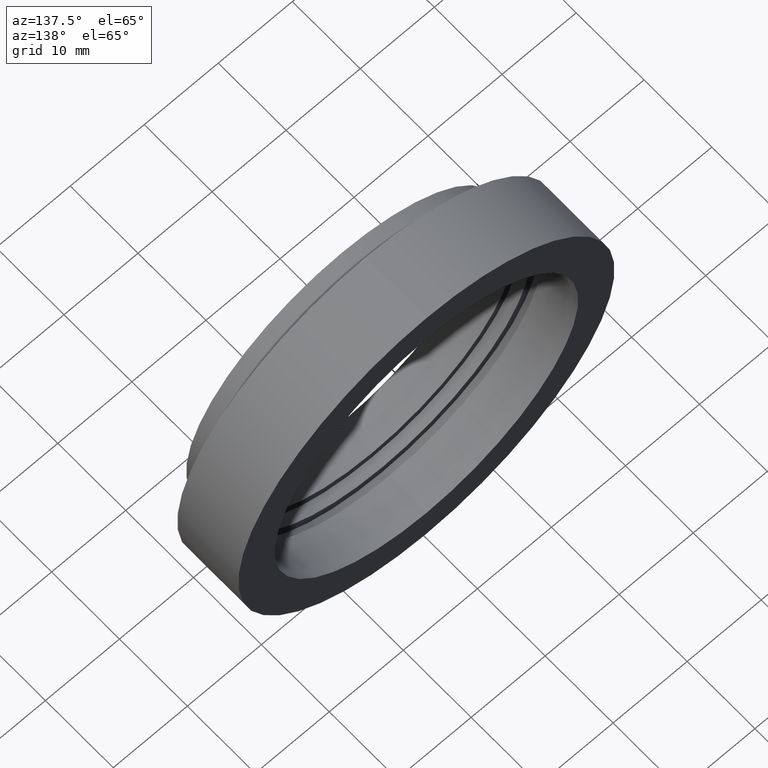
[diagram: clean part render]
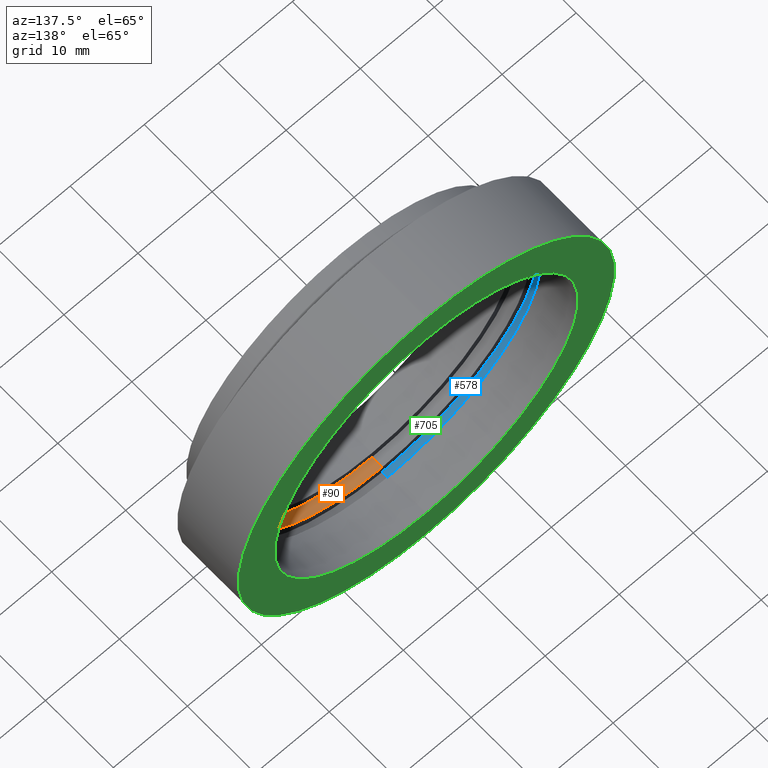
[diagram: same view with three faces highlighted in distinct colors, each labeled with its STEP entity id]
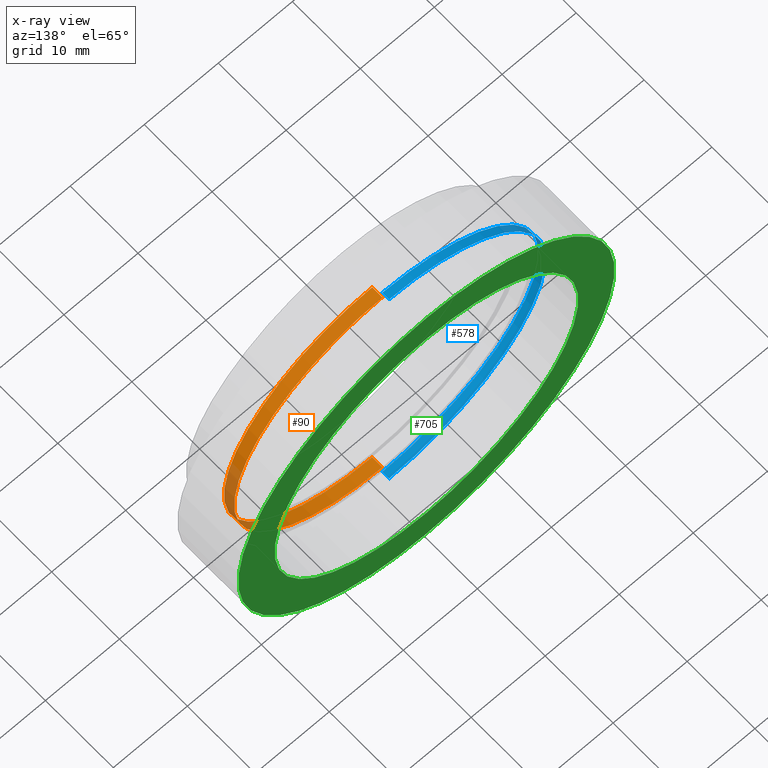
[diagram: x-ray of the same camera — body ghosted, the three highlighted faces saturated]
A machine part, auxiliary view with three faces highlighted in distinct colors.
The next image is the same camera in x-ray (body ghosted, the three faces saturated) — at least one of them is partly hidden behind the body in this view.
Their STEP definitions:

[orange] entity #90 — the highlighted cylindrical surface (partial cylindrical patch) has radius 20 mm, axis along (-0, -1, -0).
#2 = CARTESIAN_POINT ( 'NONE',  ( 0.0000000000000000000, 0.0000000000000000000, -20.00000000000000000 ) ) ;
#4 = VERTEX_POINT ( 'NONE', #415 ) ;
#5 = DIRECTION ( 'NONE',  ( -0.0000000000000000000, -1.000000000000000000, -0.0000000000000000000 ) ) ;
#9 = CARTESIAN_POINT ( 'NONE',  ( 0.0000000000000000000, 4.500000000000000000, 0.0000000000000000000 ) ) ;
#64 = CARTESIAN_POINT ( 'NONE',  ( 0.0000000000000000000, 4.500000000000000000, -20.00000000000000000 ) ) ;
#89 = ORIENTED_EDGE ( 'NONE', *, *, #397, .F. ) ;
#90 = ADVANCED_FACE ( 'NONE', ( #641 ), #625, .F. ) ;
#96 = AXIS2_PLACEMENT_3D ( 'NONE', #145, #323, #141 ) ;
#112 = DIRECTION ( 'NONE',  ( 0.0000000000000000000, 0.0000000000000000000, -1.000000000000000000 ) ) ;
#117 = ORIENTED_EDGE ( 'NONE', *, *, #247, .T. ) ;
#118 = DIRECTION ( 'NONE',  ( -0.0000000000000000000, -1.000000000000000000, -0.0000000000000000000 ) ) ;
#133 = DIRECTION ( 'NONE',  ( -0.0000000000000000000, -1.000000000000000000, -0.0000000000000000000 ) ) ;
#141 = DIRECTION ( 'NONE',  ( 0.0000000000000000000, 0.0000000000000000000, -1.000000000000000000 ) ) ;
#145 = CARTESIAN_POINT ( 'NONE',  ( 0.0000000000000000000, 0.0000000000000000000, 0.0000000000000000000 ) ) ;
#170 = CIRCLE ( 'NONE', #457, 20.00000000000000000 ) ;
#188 = CARTESIAN_POINT ( 'NONE',  ( 0.0000000000000000000, 6.000000000000000000, -20.00000000000000000 ) ) ;
#191 = VECTOR ( 'NONE', #133, 1000.000000000000000 ) ;
#195 = LINE ( 'NONE', #420, #191 ) ;
#218 = ORIENTED_EDGE ( 'NONE', *, *, #488, .T. ) ;
#219 = DIRECTION ( 'NONE',  ( -0.0000000000000000000, -1.000000000000000000, -0.0000000000000000000 ) ) ;
#247 = EDGE_CURVE ( 'NONE', #699, #611, #440, .T. ) ;
#294 = CARTESIAN_POINT ( 'NONE',  ( 2.449293598294706500E-015, 6.000000000000000000, 20.00000000000000000 ) ) ;
#296 = CIRCLE ( 'NONE', #511, 20.00000000000000000 ) ;
#323 = DIRECTION ( 'NONE',  ( -0.0000000000000000000, -1.000000000000000000, -0.0000000000000000000 ) ) ;
#345 = DIRECTION ( 'NONE',  ( 0.0000000000000000000, 0.0000000000000000000, -1.000000000000000000 ) ) ;
#397 = EDGE_CURVE ( 'NONE', #699, #468, #170, .T. ) ;
#402 = CARTESIAN_POINT ( 'NONE',  ( 0.0000000000000000000, 6.000000000000000000, 0.0000000000000000000 ) ) ;
#415 = CARTESIAN_POINT ( 'NONE',  ( 2.449293598294706500E-015, 4.500000000000000000, 20.00000000000000000 ) ) ;
#420 = CARTESIAN_POINT ( 'NONE',  ( 2.449293598294706500E-015, 0.0000000000000000000, 20.00000000000000000 ) ) ;
#440 = LINE ( 'NONE', #2, #716 ) ;
#457 = AXIS2_PLACEMENT_3D ( 'NONE', #402, #118, #345 ) ;
#468 = VERTEX_POINT ( 'NONE', #294 ) ;
#488 = EDGE_CURVE ( 'NONE', #611, #4, #296, .T. ) ;
#511 = AXIS2_PLACEMENT_3D ( 'NONE', #9, #5, #112 ) ;
#529 = EDGE_LOOP ( 'NONE', ( #557, #89, #117, #218 ) ) ;
#557 = ORIENTED_EDGE ( 'NONE', *, *, #722, .F. ) ;
#611 = VERTEX_POINT ( 'NONE', #64 ) ;
#625 = CYLINDRICAL_SURFACE ( 'NONE', #96, 20.00000000000000000 ) ;
#641 = FACE_OUTER_BOUND ( 'NONE', #529, .T. ) ;
#699 = VERTEX_POINT ( 'NONE', #188 ) ;
#716 = VECTOR ( 'NONE', #219, 1000.000000000000000 ) ;
#722 = EDGE_CURVE ( 'NONE', #468, #4, #195, .T. ) ;

[blue] entity #578 — the highlighted cylindrical surface (partial cylindrical patch) has radius 21.1 mm, axis along (-0, -1, -0).
#14 = CARTESIAN_POINT ( 'NONE',  ( 0.0000000000000000000, 7.000000000000000000, 0.0000000000000000000 ) ) ;
#31 = LINE ( 'NONE', #245, #299 ) ;
#48 = ORIENTED_EDGE ( 'NONE', *, *, #695, .F. ) ;
#55 = EDGE_CURVE ( 'NONE', #521, #395, #250, .T. ) ;
#69 = ORIENTED_EDGE ( 'NONE', *, *, #664, .F. ) ;
#82 = CARTESIAN_POINT ( 'NONE',  ( 0.0000000000000000000, 6.000000000000000000, 0.0000000000000000000 ) ) ;
#85 = DIRECTION ( 'NONE',  ( 0.0000000000000000000, 0.0000000000000000000, -1.000000000000000000 ) ) ;
#120 = CARTESIAN_POINT ( 'NONE',  ( 0.0000000000000000000, 0.0000000000000000000, 0.0000000000000000000 ) ) ;
#152 = DIRECTION ( 'NONE',  ( -0.0000000000000000000, -1.000000000000000000, -0.0000000000000000000 ) ) ;
#157 = EDGE_CURVE ( 'NONE', #380, #521, #604, .T. ) ;
#180 = DIRECTION ( 'NONE',  ( 0.0000000000000000000, 0.0000000000000000000, -1.000000000000000000 ) ) ;
#196 = VECTOR ( 'NONE', #152, 1000.000000000000000 ) ;
#230 = ORIENTED_EDGE ( 'NONE', *, *, #55, .T. ) ;
#234 = AXIS2_PLACEMENT_3D ( 'NONE', #120, #518, #510 ) ;
#245 = CARTESIAN_POINT ( 'NONE',  ( 0.0000000000000000000, 0.0000000000000000000, -21.10000000000000100 ) ) ;
#250 = CIRCLE ( 'NONE', #466, 21.10000000000000100 ) ;
#273 = CIRCLE ( 'NONE', #442, 21.10000000000000100 ) ;
#288 = CARTESIAN_POINT ( 'NONE',  ( 2.584004746200915400E-015, 6.000000000000000000, 21.10000000000000100 ) ) ;
#295 = CARTESIAN_POINT ( 'NONE',  ( 2.584004746200915400E-015, 7.000000000000000000, 21.10000000000000100 ) ) ;
#299 = VECTOR ( 'NONE', #507, 1000.000000000000000 ) ;
#344 = CARTESIAN_POINT ( 'NONE',  ( 0.0000000000000000000, 6.000000000000000000, -21.10000000000000100 ) ) ;
#380 = VERTEX_POINT ( 'NONE', #295 ) ;
#392 = EDGE_LOOP ( 'NONE', ( #48, #679, #230, #69 ) ) ;
#395 = VERTEX_POINT ( 'NONE', #344 ) ;
#438 = CYLINDRICAL_SURFACE ( 'NONE', #234, 21.10000000000000100 ) ;
#442 = AXIS2_PLACEMENT_3D ( 'NONE', #14, #459, #180 ) ;
#459 = DIRECTION ( 'NONE',  ( -0.0000000000000000000, -1.000000000000000000, -0.0000000000000000000 ) ) ;
#466 = AXIS2_PLACEMENT_3D ( 'NONE', #82, #657, #85 ) ;
#485 = VERTEX_POINT ( 'NONE', #635 ) ;
#507 = DIRECTION ( 'NONE',  ( -0.0000000000000000000, -1.000000000000000000, -0.0000000000000000000 ) ) ;
#510 = DIRECTION ( 'NONE',  ( 0.0000000000000000000, 0.0000000000000000000, -1.000000000000000000 ) ) ;
#518 = DIRECTION ( 'NONE',  ( -0.0000000000000000000, -1.000000000000000000, -0.0000000000000000000 ) ) ;
#521 = VERTEX_POINT ( 'NONE', #288 ) ;
#578 = ADVANCED_FACE ( 'NONE', ( #590 ), #438, .F. ) ;
#590 = FACE_OUTER_BOUND ( 'NONE', #392, .T. ) ;
#604 = LINE ( 'NONE', #717, #196 ) ;
#635 = CARTESIAN_POINT ( 'NONE',  ( 0.0000000000000000000, 7.000000000000000000, -21.10000000000000100 ) ) ;
#657 = DIRECTION ( 'NONE',  ( -0.0000000000000000000, -1.000000000000000000, -0.0000000000000000000 ) ) ;
#664 = EDGE_CURVE ( 'NONE', #485, #395, #31, .T. ) ;
#679 = ORIENTED_EDGE ( 'NONE', *, *, #157, .T. ) ;
#695 = EDGE_CURVE ( 'NONE', #380, #485, #273, .T. ) ;
#717 = CARTESIAN_POINT ( 'NONE',  ( 2.584004746200915400E-015, 0.0000000000000000000, 21.10000000000000100 ) ) ;

[green] entity #705 — the highlighted planar face has unit normal (0, 1, 0).
#12 = EDGE_CURVE ( 'NONE', #325, #627, #545, .T. ) ;
#15 = AXIS2_PLACEMENT_3D ( 'NONE', #384, #493, #554 ) ;
#19 = VERTEX_POINT ( 'NONE', #704 ) ;
#34 = DIRECTION ( 'NONE',  ( -0.0000000000000000000, -1.000000000000000000, -0.0000000000000000000 ) ) ;
#71 = EDGE_CURVE ( 'NONE', #627, #325, #185, .T. ) ;
#104 = CARTESIAN_POINT ( 'NONE',  ( 2.510525938252074500E-015, 12.50000000000000000, 20.50000000000000400 ) ) ;
#131 = ORIENTED_EDGE ( 'NONE', *, *, #71, .T. ) ;
#138 = CARTESIAN_POINT ( 'NONE',  ( 25.39999999999999900, 12.50000000000000000, 0.0000000000000000000 ) ) ;
#175 = CIRCLE ( 'NONE', #15, 25.39999999999999900 ) ;
#176 = EDGE_CURVE ( 'NONE', #19, #540, #175, .T. ) ;
#185 = CIRCLE ( 'NONE', #628, 20.50000000000000400 ) ;
#190 = DIRECTION ( 'NONE',  ( -0.0000000000000000000, -1.000000000000000000, -0.0000000000000000000 ) ) ;
#238 = CARTESIAN_POINT ( 'NONE',  ( 0.0000000000000000000, 12.50000000000000000, -20.50000000000000400 ) ) ;
#254 = PLANE ( 'NONE',  #292 ) ;
#268 = DIRECTION ( 'NONE',  ( 0.0000000000000000000, 0.0000000000000000000, -1.000000000000000000 ) ) ;
#292 = AXIS2_PLACEMENT_3D ( 'NONE', #138, #654, #479 ) ;
#308 = EDGE_LOOP ( 'NONE', ( #495, #450 ) ) ;
#317 = ORIENTED_EDGE ( 'NONE', *, *, #12, .T. ) ;
#325 = VERTEX_POINT ( 'NONE', #104 ) ;
#337 = AXIS2_PLACEMENT_3D ( 'NONE', #527, #190, #591 ) ;
#371 = CARTESIAN_POINT ( 'NONE',  ( 0.0000000000000000000, 12.50000000000000000, 0.0000000000000000000 ) ) ;
#372 = CIRCLE ( 'NONE', #405, 25.39999999999999900 ) ;
#384 = CARTESIAN_POINT ( 'NONE',  ( 0.0000000000000000000, 12.50000000000000000, 0.0000000000000000000 ) ) ;
#405 = AXIS2_PLACEMENT_3D ( 'NONE', #579, #644, #691 ) ;
#431 = FACE_BOUND ( 'NONE', #726, .T. ) ;
#450 = ORIENTED_EDGE ( 'NONE', *, *, #682, .F. ) ;
#479 = DIRECTION ( 'NONE',  ( 0.0000000000000000000, -0.0000000000000000000, 1.000000000000000000 ) ) ;
#493 = DIRECTION ( 'NONE',  ( -0.0000000000000000000, -1.000000000000000000, -0.0000000000000000000 ) ) ;
#495 = ORIENTED_EDGE ( 'NONE', *, *, #176, .F. ) ;
#527 = CARTESIAN_POINT ( 'NONE',  ( 0.0000000000000000000, 12.50000000000000000, 0.0000000000000000000 ) ) ;
#540 = VERTEX_POINT ( 'NONE', #567 ) ;
#545 = CIRCLE ( 'NONE', #337, 20.50000000000000400 ) ;
#554 = DIRECTION ( 'NONE',  ( 0.0000000000000000000, 0.0000000000000000000, -1.000000000000000000 ) ) ;
#567 = CARTESIAN_POINT ( 'NONE',  ( 3.110602869834276900E-015, 12.50000000000000000, 25.39999999999999900 ) ) ;
#579 = CARTESIAN_POINT ( 'NONE',  ( 0.0000000000000000000, 12.50000000000000000, 0.0000000000000000000 ) ) ;
#591 = DIRECTION ( 'NONE',  ( 0.0000000000000000000, 0.0000000000000000000, -1.000000000000000000 ) ) ;
#627 = VERTEX_POINT ( 'NONE', #238 ) ;
#628 = AXIS2_PLACEMENT_3D ( 'NONE', #371, #34, #268 ) ;
#644 = DIRECTION ( 'NONE',  ( -0.0000000000000000000, -1.000000000000000000, -0.0000000000000000000 ) ) ;
#654 = DIRECTION ( 'NONE',  ( 0.0000000000000000000, 1.000000000000000000, 0.0000000000000000000 ) ) ;
#682 = EDGE_CURVE ( 'NONE', #540, #19, #372, .T. ) ;
#691 = DIRECTION ( 'NONE',  ( 0.0000000000000000000, 0.0000000000000000000, -1.000000000000000000 ) ) ;
#696 = FACE_OUTER_BOUND ( 'NONE', #308, .T. ) ;
#704 = CARTESIAN_POINT ( 'NONE',  ( 0.0000000000000000000, 12.50000000000000000, -25.39999999999999900 ) ) ;
#705 = ADVANCED_FACE ( 'NONE', ( #431, #696 ), #254, .T. ) ;
#726 = EDGE_LOOP ( 'NONE', ( #131, #317 ) ) ;